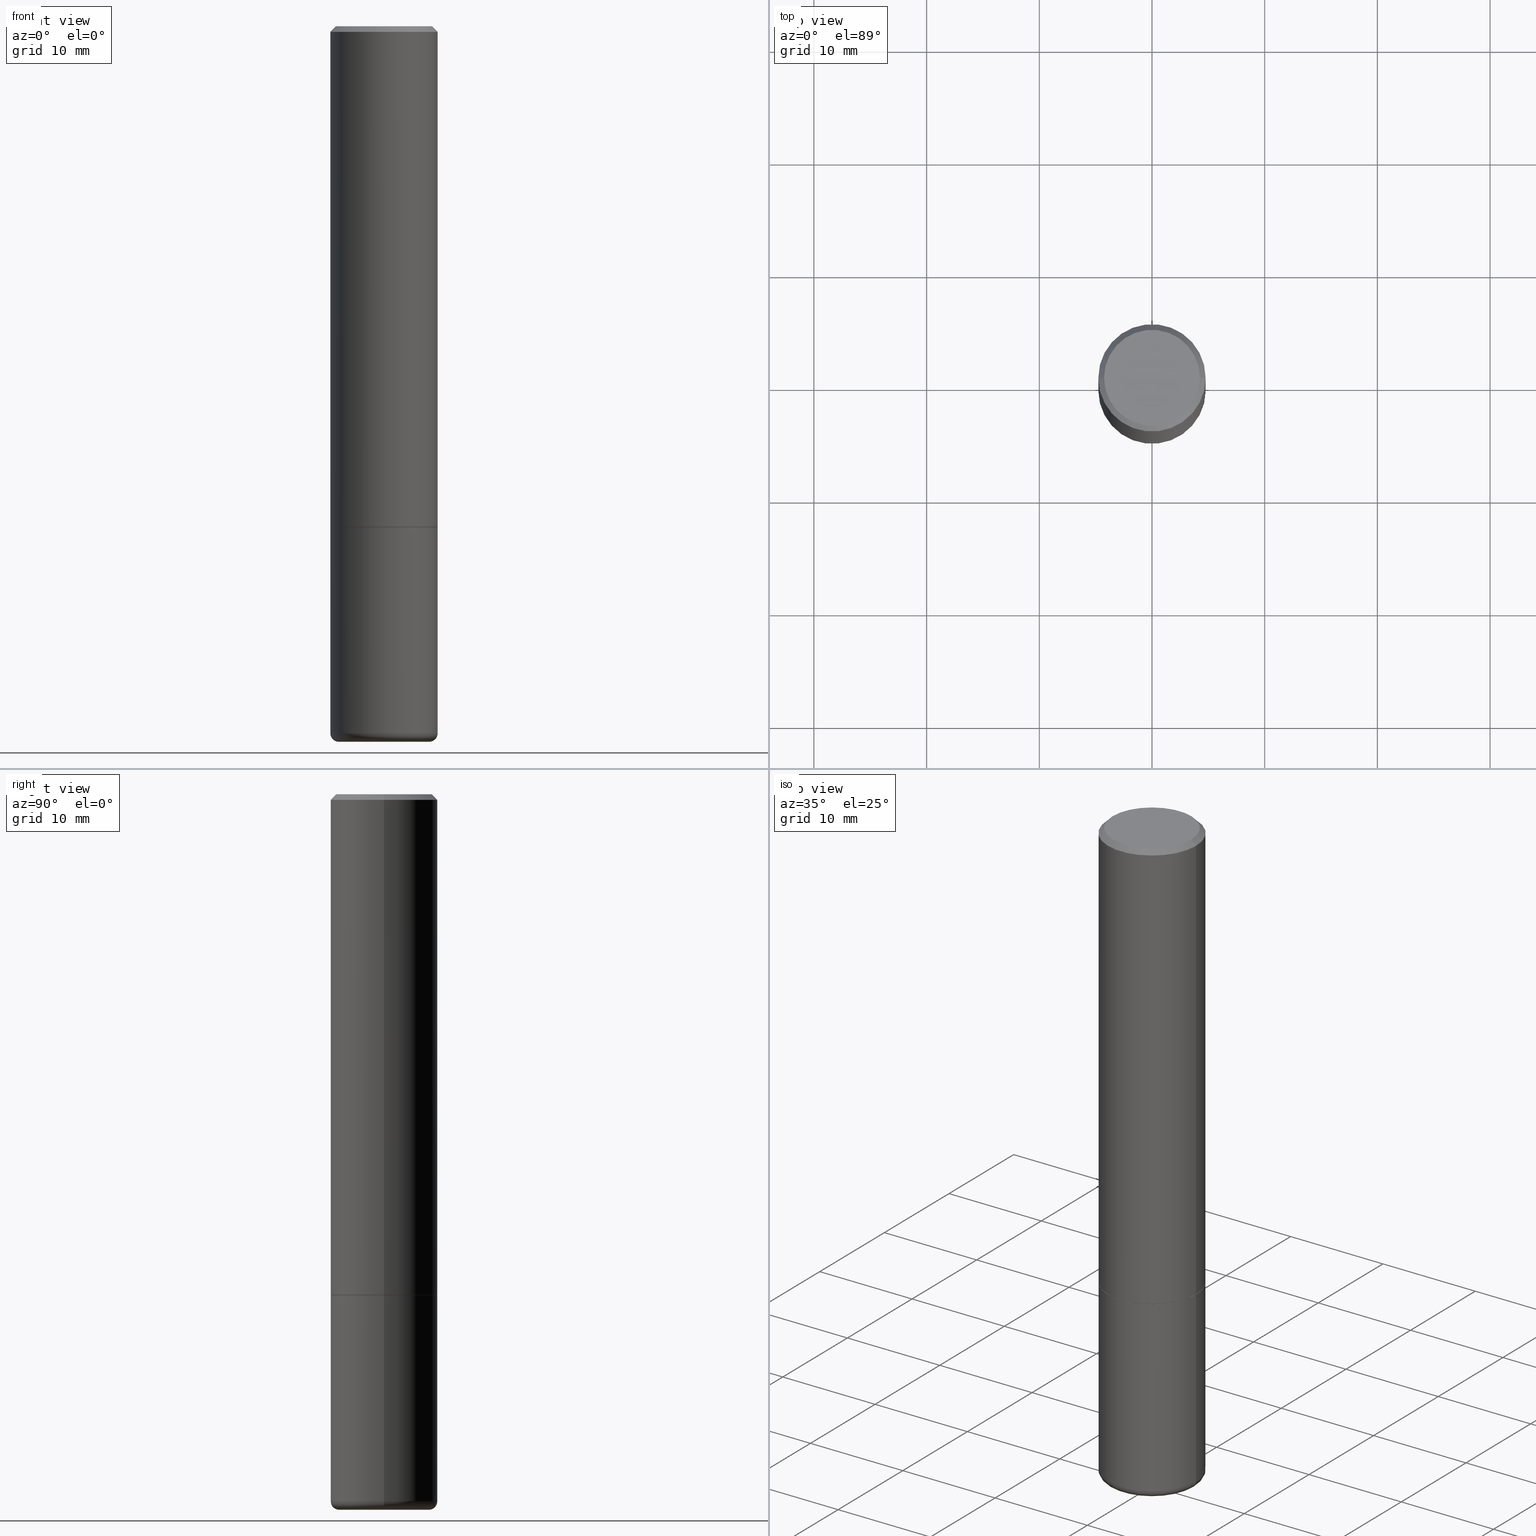
[diagram: canonical four-view strip — front | top / right | iso, engineering-drawing reading convention]
A machine part, canonical four-view strip (front | top / right | iso — engineering-drawing reading convention). The complete STEP part file that produces these views, byte-faithful:
ISO-10303-21;
HEADER;
FILE_DESCRIPTION (( 'STEP AP203' ),
    '1' );
FILE_NAME ('37023.STEP',
    '2024-03-01T18:48:43',
    ( '' ),
    ( '' ),
    'SwSTEP 2.0',
    'SolidWorks 2023',
    '' );
FILE_SCHEMA (( 'CONFIG_CONTROL_DESIGN' ));
ENDSEC;

DATA;
#1 = ORIENTED_EDGE ( 'NONE', *, *, #92, .T. ) ;
#2 = AXIS2_PLACEMENT_3D ( 'NONE', #135, #40, #9 ) ;
#3 = CIRCLE ( 'NONE', #202, 0.1875000000000000278 ) ;
#4 = EDGE_LOOP ( 'NONE', ( #236, #268, #52, #38 ) ) ;
#5 = DIRECTION ( 'NONE',  ( 7.105427357601001859E-15, 1.000000000000000000, -3.491481338843145583E-15 ) ) ;
#6 = CARTESIAN_POINT ( 'NONE',  ( -0.1865000000000000546, -4.779631686434695429E-15, -1.750000000000000222 ) ) ;
#7 = CIRCLE ( 'NONE', #407, 0.02999999999999995379 ) ;
#8 = CARTESIAN_POINT ( 'NONE',  ( -2.400858252971005371E-45, 3.427789291875028588E-31, 9.817578727230945633E-17 ) ) ;
#9 = DIRECTION ( 'NONE',  ( 1.000000000000000000, -6.982962677686265922E-15, 0.000000000000000000 ) ) ;
#10 = DIRECTION ( 'NONE',  ( -2.445468806185136597E-29, 3.491481338843145583E-15, 1.000000000000000000 ) ) ;
#11 = AXIS2_PLACEMENT_3D ( 'NONE', #248, #176, #12 ) ;
#12 = DIRECTION ( 'NONE',  ( -1.000000000000000000, 6.982962677686265922E-15, -4.876176775795935793E-29 ) ) ;
#13 = ADVANCED_FACE ( 'NONE', ( #153 ), #227, .T. ) ;
#14 = DIRECTION ( 'NONE',  ( 1.000000000000000000, -6.982962677686269077E-15, 4.883557194083113462E-29 ) ) ;
#15 = VERTEX_POINT ( 'NONE', #322 ) ;
#16 = CC_DESIGN_PERSON_AND_ORGANIZATION_ASSIGNMENT ( #388, #128, ( #76 ) ) ;
#17 = DIRECTION ( 'NONE',  ( 1.000000000000000000, -6.982962677686266711E-15, 4.876176775795935793E-29 ) ) ;
#18 = ORIENTED_EDGE ( 'NONE', *, *, #339, .T. ) ;
#19 = CARTESIAN_POINT ( 'NONE',  ( 4.279570410823989044E-29, -6.110092342975505460E-15, -1.750000000000000222 ) ) ;
#20 = AXIS2_PLACEMENT_3D ( 'NONE', #243, #95, #96 ) ;
#21 = EDGE_LOOP ( 'NONE', ( #381, #186, #91, #349 ) ) ;
#22 = CARTESIAN_POINT ( 'NONE',  ( 0.000000000000000000, 0.000000000000000000, 0.000000000000000000 ) ) ;
#23 = ADVANCED_FACE ( 'NONE', ( #119 ), #383, .F. ) ;
#24 = ORIENTED_EDGE ( 'NONE', *, *, #232, .T. ) ;
#25 = DATE_AND_TIME ( #65, #274 ) ;
#26 = EDGE_LOOP ( 'NONE', ( #123, #293, #320, #199 ) ) ;
#27 = CC_DESIGN_PERSON_AND_ORGANIZATION_ASSIGNMENT ( #352, #59, ( #102 ) ) ;
#28 = VERTEX_POINT ( 'NONE', #33 ) ;
#29 = AXIS2_PLACEMENT_3D ( 'NONE', #171, #363, #332 ) ;
#30 = VECTOR ( 'NONE', #292, 39.37007874015748143 ) ;
#31 = EDGE_CURVE ( 'NONE', #196, #222, #89, .T. ) ;
#32 = APPROVAL_DATE_TIME ( #382, #395 ) ;
#33 = CARTESIAN_POINT ( 'NONE',  ( -0.1674999999999999545, 1.204561061900880850E-15, 9.817578727230116097E-17 ) ) ;
#34 = CARTESIAN_POINT ( 'NONE',  ( -0.1875000000000000278, -6.034757995408850668E-15, -1.750000000000000222 ) ) ;
#35 = ORIENTED_EDGE ( 'NONE', *, *, #161, .T. ) ;
#36 = APPLICATION_CONTEXT ( 'configuration controlled 3d designs of mechanical parts and assemblies' ) ;
#37 = LENGTH_MEASURE_WITH_UNIT ( LENGTH_MEASURE( 0.02539999999999999897 ), #384 );
#38 = ORIENTED_EDGE ( 'NONE', *, *, #232, .F. ) ;
#39 = LOCAL_TIME ( 13, 48, 43.00000000000000000, #242 ) ;
#40 = DIRECTION ( 'NONE',  ( -2.445468806185136597E-29, 3.491481338843145583E-15, 1.000000000000000000 ) ) ;
#41 = EDGE_CURVE ( 'NONE', #64, #289, #71, .T. ) ;
#42 = FACE_OUTER_BOUND ( 'NONE', #281, .T. ) ;
#43 = SHAPE_DEFINITION_REPRESENTATION ( #311, #143 ) ;
#44 = FACE_OUTER_BOUND ( 'NONE', #162, .T. ) ;
#45 = AXIS2_PLACEMENT_3D ( 'NONE', #22, #110, #17 ) ;
#46 = CARTESIAN_POINT ( 'NONE',  ( 6.040307951277287977E-29, -8.623958906942569995E-15, -2.470000000000000195 ) ) ;
#47 = CARTESIAN_POINT ( 'NONE',  ( -0.1874999999999999722, -7.291691277392382147E-15, -2.470000000000000195 ) ) ;
#48 = CARTESIAN_POINT ( 'NONE',  ( -0.1875000000000001943, -1.755947614656571871E-15, -1.749000000000000110 ) ) ;
#49 = CIRCLE ( 'NONE', #394, 0.1875000000000001943 ) ;
#50 = CARTESIAN_POINT ( 'NONE',  ( 0.1875000000000000278, -7.419397845041680468E-15, -1.750000000000000222 ) ) ;
#51 = CARTESIAN_POINT ( 'NONE',  ( 6.040307951277287977E-29, -8.623958906942569995E-15, -2.470000000000000195 ) ) ;
#52 = ORIENTED_EDGE ( 'NONE', *, *, #41, .T. ) ;
#53 = DIRECTION ( 'NONE',  ( 2.445468806185136597E-29, -3.491481338843145583E-15, -1.000000000000000000 ) ) ;
#54 = EDGE_LOOP ( 'NONE', ( #66, #231, #142, #373 ) ) ;
#55 = DIRECTION ( 'NONE',  ( 1.000000000000000000, -6.982962677686265922E-15, 0.000000000000000000 ) ) ;
#56 = CIRCLE ( 'NONE', #140, 0.1674999999999999545 ) ;
#57 = DIRECTION ( 'NONE',  ( -2.445468806185136597E-29, 3.491481338843145583E-15, 1.000000000000000000 ) ) ;
#58 = ORIENTED_EDGE ( 'NONE', *, *, #130, .T. ) ;
#59 = PERSON_AND_ORGANIZATION_ROLE ( 'creator' ) ;
#60 = ORIENTED_EDGE ( 'NONE', *, *, #247, .F. ) ;
#61 = EDGE_CURVE ( 'NONE', #222, #196, #259, .T. ) ;
#62 = CARTESIAN_POINT ( 'NONE',  ( 1.169646248512449398E-15, 0.1674999999999999545, -5.357352306200719614E-16 ) ) ;
#63 = CONICAL_SURFACE ( 'NONE', #29, 0.1875000000000000555, 0.7853981633974471688 ) ;
#64 = VERTEX_POINT ( 'NONE', #241 ) ;
#65 = CALENDAR_DATE ( 2024, 1, 3 ) ;
#66 = ORIENTED_EDGE ( 'NONE', *, *, #391, .F. ) ;
#67 = DIRECTION ( 'NONE',  ( 1.000000000000000000, -6.982962677686266711E-15, 4.879897708425057866E-29 ) ) ;
#68 = DIRECTION ( 'NONE',  ( -2.445468806185136597E-29, 3.491481338843145583E-15, 1.000000000000000000 ) ) ;
#69 = FACE_OUTER_BOUND ( 'NONE', #4, .T. ) ;
#70 = FACE_OUTER_BOUND ( 'NONE', #405, .T. ) ;
#71 = CIRCLE ( 'NONE', #20, 0.1875000000000000555 ) ;
#72 = DIRECTION ( 'NONE',  ( -2.445468806185136597E-29, 3.491481338843145583E-15, 1.000000000000000000 ) ) ;
#73 = DIRECTION ( 'NONE',  ( -2.445468806185136597E-29, 3.491481338843145583E-15, 1.000000000000000000 ) ) ;
#74 = DIRECTION ( 'NONE',  ( -2.445468806185136877E-29, 3.491481338843145188E-15, 1.000000000000000000 ) ) ;
#75 = CIRCLE ( 'NONE', #364, 0.1875000000000000278 ) ;
#76 = SECURITY_CLASSIFICATION ( '', '', #270 ) ;
#77 = DIRECTION ( 'NONE',  ( 0.7071067811865466846, -7.319954787623252890E-15, -0.7071067811865483499 ) ) ;
#78 = DIRECTION ( 'NONE',  ( -1.000000000000000000, 6.982962677686265922E-15, 0.000000000000000000 ) ) ;
#79 = CARTESIAN_POINT ( 'NONE',  ( 0.1874999999999999722, -9.933264409008746581E-15, -2.470000000000000195 ) ) ;
#80 = COORDINATED_UNIVERSAL_TIME_OFFSET ( 5, 0, .BEHIND. ) ;
#81 = AXIS2_PLACEMENT_3D ( 'NONE', #51, #73, #14 ) ;
#82 = PERSON_AND_ORGANIZATION ( #342, #260 ) ;
#83 = EDGE_CURVE ( 'NONE', #385, #64, #244, .T. ) ;
#84 = ORIENTED_EDGE ( 'NONE', *, *, #41, .F. ) ;
#85 = MECHANICAL_CONTEXT ( 'NONE', #36, 'mechanical' ) ;
#86 = APPROVAL ( #328, 'UNSPECIFIED' ) ;
#87 = EDGE_LOOP ( 'NONE', ( #121, #410 ) ) ;
#88 = ORIENTED_EDGE ( 'NONE', *, *, #31, .F. ) ;
#89 = CIRCLE ( 'NONE', #399, 0.1865000000000000546 ) ;
#90 = VECTOR ( 'NONE', #74, 39.37007874015748143 ) ;
#91 = ORIENTED_EDGE ( 'NONE', *, *, #401, .F. ) ;
#92 = EDGE_CURVE ( 'NONE', #196, #327, #206, .T. ) ;
#93 = DATE_TIME_ROLE ( 'classification_date' ) ;
#94 = PLANE ( 'NONE',  #124 ) ;
#95 = DIRECTION ( 'NONE',  ( -2.445468806185136597E-29, 3.491481338843145583E-15, 1.000000000000000000 ) ) ;
#96 = DIRECTION ( 'NONE',  ( 1.000000000000000000, -6.982962677686265922E-15, 0.000000000000000000 ) ) ;
#97 = APPROVAL_DATE_TIME ( #245, #169 ) ;
#98 = DIRECTION ( 'NONE',  ( 2.438088387897960049E-29, -3.491481338843145188E-15, -1.000000000000000000 ) ) ;
#99 = DIRECTION ( 'NONE',  ( -2.445468806185136597E-29, 3.491481338843145583E-15, 1.000000000000000000 ) ) ;
#100 = ADVANCED_FACE ( 'NONE', ( #366 ), #310, .T. ) ;
#101 = TOROIDAL_SURFACE ( 'NONE', #81, 0.1575000000000000289, 0.02999999999999997113 ) ;
#102 = PRODUCT_DEFINITION_FORMATION_WITH_SPECIFIED_SOURCE ( 'ANY', '', #418, .NOT_KNOWN. ) ;
#103 = CARTESIAN_POINT ( 'NONE',  ( 0.1875000000000000555, -1.356173001359025663E-15, -0.02000000000000004205 ) ) ;
#104 = ADVANCED_FACE ( 'NONE', ( #70 ), #224, .T. ) ;
#105 = FACE_OUTER_BOUND ( 'NONE', #296, .T. ) ;
#106 = CARTESIAN_POINT ( 'NONE',  ( 0.000000000000000000, 0.000000000000000000, 0.000000000000000000 ) ) ;
#107 = ORIENTED_EDGE ( 'NONE', *, *, #205, .F. ) ;
#108 = CIRCLE ( 'NONE', #316, 0.02999999999999995379 ) ;
#109 = VECTOR ( 'NONE', #189, 39.37007874015748143 ) ;
#110 = DIRECTION ( 'NONE',  ( -2.445468806185136597E-29, 3.491481338843145583E-15, 1.000000000000000000 ) ) ;
#111 = DIRECTION ( 'NONE',  ( -2.438088387897960049E-29, 3.491481338843145188E-15, 1.000000000000000000 ) ) ;
#112 = APPLICATION_PROTOCOL_DEFINITION ( 'international standard', 'config_control_design', 1994, #295 ) ;
#113 = ORIENTED_EDGE ( 'NONE', *, *, #92, .F. ) ;
#114 = AXIS2_PLACEMENT_3D ( 'NONE', #207, #166, #137 ) ;
#115 = CALENDAR_DATE ( 2024, 1, 3 ) ;
#116 = DIRECTION ( 'NONE',  ( -2.445468806185136597E-29, 3.491481338843145583E-15, 1.000000000000000000 ) ) ;
#117 = CC_DESIGN_PERSON_AND_ORGANIZATION_ASSIGNMENT ( #118, #230, ( #418 ) ) ;
#118 = PERSON_AND_ORGANIZATION ( #342, #260 ) ;
#119 = FACE_OUTER_BOUND ( 'NONE', #87, .T. ) ;
#120 = DATE_AND_TIME ( #261, #344 ) ;
#121 = ORIENTED_EDGE ( 'NONE', *, *, #125, .T. ) ;
#122 = APPLICATION_PROTOCOL_DEFINITION ( 'international standard', 'config_control_design', 1994, #36 ) ;
#123 = ORIENTED_EDGE ( 'NONE', *, *, #403, .F. ) ;
#124 = AXIS2_PLACEMENT_3D ( 'NONE', #175, #98, #246 ) ;
#125 = EDGE_CURVE ( 'NONE', #28, #15, #56, .T. ) ;
#126 = VECTOR ( 'NONE', #77, 39.37007874015748143 ) ;
#127 = ORIENTED_EDGE ( 'NONE', *, *, #304, .F. ) ;
#128 = PERSON_AND_ORGANIZATION_ROLE ( 'classification_officer' ) ;
#129 = DIRECTION ( 'NONE',  ( -2.445468806185136597E-29, 3.491481338843145583E-15, 1.000000000000000000 ) ) ;
#130 = EDGE_CURVE ( 'NONE', #235, #301, #108, .T. ) ;
#131 = APPROVAL_ROLE ( '' ) ;
#132 = CARTESIAN_POINT ( 'NONE',  ( 6.113672015462842613E-29, -8.728703347107864943E-15, -2.500000000000000000 ) ) ;
#133 = CIRCLE ( 'NONE', #218, 0.1875000000000000278 ) ;
#134 = APPROVAL_PERSON_ORGANIZATION ( #173, #169, #131 ) ;
#135 = CARTESIAN_POINT ( 'NONE',  ( 4.279570410823989044E-29, -6.110092342975505460E-15, -1.750000000000000222 ) ) ;
#136 = DIRECTION ( 'NONE',  ( -6.982962677686266711E-15, -1.000000000000000000, 3.491481338843145583E-15 ) ) ;
#137 = DIRECTION ( 'NONE',  ( 1.000000000000000000, -6.982962677686265922E-15, 0.000000000000000000 ) ) ;
#138 = EDGE_CURVE ( 'NONE', #389, #347, #133, .T. ) ;
#139 = AXIS2_PLACEMENT_3D ( 'NONE', #278, #406, #182 ) ;
#140 = AXIS2_PLACEMENT_3D ( 'NONE', #8, #72, #174 ) ;
#141 = FACE_OUTER_BOUND ( 'NONE', #21, .T. ) ;
#142 = ORIENTED_EDGE ( 'NONE', *, *, #286, .T. ) ;
#143 = ADVANCED_BREP_SHAPE_REPRESENTATION ( '37023', ( #253, #390, #414 ), #365 ) ;
#144 = LINE ( 'NONE', #214, #157 ) ;
#145 = ADVANCED_FACE ( 'NONE', ( #44 ), #330, .T. ) ;
#146 = DIRECTION ( 'NONE',  ( 1.000000000000000000, -6.982962677686265922E-15, 0.000000000000000000 ) ) ;
#147 = AXIS2_PLACEMENT_3D ( 'NONE', #412, #116, #262 ) ;
#148 = CC_DESIGN_SECURITY_CLASSIFICATION ( #76, ( #102 ) ) ;
#149 = CYLINDRICAL_SURFACE ( 'NONE', #203, 0.1875000000000000278 ) ;
#150 = ORIENTED_EDGE ( 'NONE', *, *, #391, .T. ) ;
#151 = DIRECTION ( 'NONE',  ( -2.445468806185136597E-29, 3.491481338843145583E-15, 1.000000000000000000 ) ) ;
#152 = ORIENTED_EDGE ( 'NONE', *, *, #61, .F. ) ;
#153 = FACE_OUTER_BOUND ( 'NONE', #160, .T. ) ;
#154 = ADVANCED_FACE ( 'NONE', ( #42 ), #94, .F. ) ;
#155 = CIRCLE ( 'NONE', #378, 0.1674999999999999545 ) ;
#156 = CARTESIAN_POINT ( 'NONE',  ( 0.000000000000000000, 0.000000000000000000, 0.000000000000000000 ) ) ;
#157 = VECTOR ( 'NONE', #309, 39.37007874015748143 ) ;
#158 = ORIENTED_EDGE ( 'NONE', *, *, #161, .F. ) ;
#159 = PERSON_AND_ORGANIZATION_ROLE ( 'creator' ) ;
#160 = EDGE_LOOP ( 'NONE', ( #356, #150, #60, #354 ) ) ;
#161 = EDGE_CURVE ( 'NONE', #222, #385, #302, .T. ) ;
#162 = EDGE_LOOP ( 'NONE', ( #314, #18, #58, #269 ) ) ;
#163 = ORIENTED_EDGE ( 'NONE', *, *, #403, .T. ) ;
#164 = CLOSED_SHELL ( 'NONE', ( #13, #210, #154, #279, #145, #359 ) ) ;
#165 = PERSON_AND_ORGANIZATION_ROLE ( 'design_supplier' ) ;
#166 = DIRECTION ( 'NONE',  ( -2.445468806185136597E-29, 3.491481338843145583E-15, 1.000000000000000000 ) ) ;
#167 = ADVANCED_FACE ( 'NONE', ( #69 ), #63, .T. ) ;
#168 = CARTESIAN_POINT ( 'NONE',  ( 0.1875000000000001110, -1.309305502066175797E-15, 9.142831454617385217E-30 ) ) ;
#169 = APPROVAL ( #237, 'UNSPECIFIED' ) ;
#170 = UNCERTAINTY_MEASURE_WITH_UNIT (LENGTH_MEASURE( 1.000000000000000082E-05 ), #357, 'distance_accuracy_value', 'NONE');
#171 = CARTESIAN_POINT ( 'NONE',  ( 4.890937612370283668E-31, -6.982962677686305168E-17, -0.02000000000000004205 ) ) ;
#172 = LOCAL_TIME ( 13, 48, 43.00000000000000000, #80 ) ;
#173 = PERSON_AND_ORGANIZATION ( #342, #260 ) ;
#174 = DIRECTION ( 'NONE',  ( 1.000000000000000000, -6.982962677686266711E-15, 4.879897708425057866E-29 ) ) ;
#175 = CARTESIAN_POINT ( 'NONE',  ( 4.279570410823989044E-29, -6.110092342975505460E-15, -1.750000000000000222 ) ) ;
#176 = DIRECTION ( 'NONE',  ( 2.438088387897960049E-29, -3.491481338843145188E-15, -1.000000000000000000 ) ) ;
#177 = AXIS2_PLACEMENT_3D ( 'NONE', #132, #201, #271 ) ;
#178 = CYLINDRICAL_SURFACE ( 'NONE', #45, 0.1875000000000001110 ) ;
#179 = EDGE_CURVE ( 'NONE', #181, #188, #7, .T. ) ;
#180 = DIRECTION ( 'NONE',  ( 1.000000000000000000, -6.982962677686266711E-15, 0.000000000000000000 ) ) ;
#181 = VERTEX_POINT ( 'NONE', #397 ) ;
#182 = DIRECTION ( 'NONE',  ( 1.000000000000000000, -6.982962677686265922E-15, 0.000000000000000000 ) ) ;
#183 = AXIS2_PLACEMENT_3D ( 'NONE', #106, #346, #374 ) ;
#184 = CARTESIAN_POINT ( 'NONE',  ( 4.890937612370283668E-31, -6.982962677686305168E-17, -0.02000000000000004205 ) ) ;
#185 = EDGE_CURVE ( 'NONE', #188, #301, #75, .T. ) ;
#186 = ORIENTED_EDGE ( 'NONE', *, *, #179, .T. ) ;
#187 = PERSON_AND_ORGANIZATION ( #342, #260 ) ;
#188 = VERTEX_POINT ( 'NONE', #47 ) ;
#189 = DIRECTION ( 'NONE',  ( -2.445468806185136877E-29, 3.491481338843145188E-15, 1.000000000000000000 ) ) ;
#190 = ORIENTED_EDGE ( 'NONE', *, *, #247, .T. ) ;
#191 = PERSON_AND_ORGANIZATION ( #342, #260 ) ;
#192 = CC_DESIGN_APPROVAL ( #169, ( #76 ) ) ;
#193 = DIRECTION ( 'NONE',  ( 2.438088387897960049E-29, -3.491481338843145188E-15, -1.000000000000000000 ) ) ;
#194 = DIMENSIONAL_EXPONENTS ( 1.000000000000000000, 0.000000000000000000, 0.000000000000000000, 0.000000000000000000, 0.000000000000000000, 0.000000000000000000, 0.000000000000000000 ) ;
#195 =( NAMED_UNIT ( * ) SI_UNIT ( $, .STERADIAN. ) SOLID_ANGLE_UNIT ( ) );
#196 = VERTEX_POINT ( 'NONE', #6 ) ;
#197 = EDGE_CURVE ( 'NONE', #15, #28, #155, .T. ) ;
#198 = DATE_TIME_ROLE ( 'creation_date' ) ;
#199 = ORIENTED_EDGE ( 'NONE', *, *, #213, .F. ) ;
#200 = EDGE_CURVE ( 'NONE', #235, #181, #277, .T. ) ;
#201 = DIRECTION ( 'NONE',  ( -2.445468806185136597E-29, 3.491481338843145583E-15, 1.000000000000000000 ) ) ;
#202 = AXIS2_PLACEMENT_3D ( 'NONE', #282, #249, #180 ) ;
#203 = AXIS2_PLACEMENT_3D ( 'NONE', #313, #376, #285 ) ;
#204 = DIRECTION ( 'NONE',  ( 1.000000000000000000, -6.982962677686265922E-15, 0.000000000000000000 ) ) ;
#205 = EDGE_CURVE ( 'NONE', #327, #385, #413, .T. ) ;
#206 = LINE ( 'NONE', #393, #336 ) ;
#207 = CARTESIAN_POINT ( 'NONE',  ( 4.279570410823989044E-29, -6.110092342975505460E-15, -1.750000000000000222 ) ) ;
#208 = AXIS2_PLACEMENT_3D ( 'NONE', #337, #68, #204 ) ;
#209 = APPROVAL_PERSON_ORGANIZATION ( #187, #395, #377 ) ;
#210 = ADVANCED_FACE ( 'NONE', ( #141 ), #101, .T. ) ;
#211 = DIRECTION ( 'NONE',  ( -0.7071067811865715536, 7.493145998870439357E-15, 0.7071067811865232589 ) ) ;
#212 = DESIGN_CONTEXT ( 'detailed design', #295, 'design' ) ;
#213 = EDGE_CURVE ( 'NONE', #289, #64, #331, .T. ) ;
#214 = CARTESIAN_POINT ( 'NONE',  ( -0.1875000000000000555, 1.239475875289312104E-15, -0.02000000000000004205 ) ) ;
#215 = FACE_OUTER_BOUND ( 'NONE', #26, .T. ) ;
#216 = EDGE_CURVE ( 'NONE', #385, #327, #49, .T. ) ;
#217 = ORIENTED_EDGE ( 'NONE', *, *, #213, .T. ) ;
#218 = AXIS2_PLACEMENT_3D ( 'NONE', #335, #276, #340 ) ;
#219 = AXIS2_PLACEMENT_3D ( 'NONE', #220, #151, #348 ) ;
#220 = CARTESIAN_POINT ( 'NONE',  ( 6.113672015462842613E-29, -8.728703347107864943E-15, -2.500000000000000000 ) ) ;
#221 = FACE_OUTER_BOUND ( 'NONE', #54, .T. ) ;
#222 = VERTEX_POINT ( 'NONE', #375 ) ;
#223 = DIRECTION ( 'NONE',  ( -2.445468806185136597E-29, 3.491481338843145583E-15, 1.000000000000000000 ) ) ;
#224 = CONICAL_SURFACE ( 'NONE', #208, 0.1865000000000000546, 0.7853981633974824739 ) ;
#225 = CC_DESIGN_APPROVAL ( #395, ( #288 ) ) ;
#226 = CARTESIAN_POINT ( 'NONE',  ( 0.1875000000000001943, -7.415906363702837461E-15, -1.749000000000000110 ) ) ;
#227 = CYLINDRICAL_SURFACE ( 'NONE', #147, 0.1875000000000000278 ) ;
#228 = APPROVAL_DATE_TIME ( #120, #86 ) ;
#229 = ORIENTED_EDGE ( 'NONE', *, *, #216, .T. ) ;
#230 = PERSON_AND_ORGANIZATION_ROLE ( 'design_owner' ) ;
#231 = ORIENTED_EDGE ( 'NONE', *, *, #185, .T. ) ;
#232 = EDGE_CURVE ( 'NONE', #28, #289, #144, .T. ) ;
#233 = VECTOR ( 'NONE', #370, 39.37007874015748854 ) ;
#234 = AXIS2_PLACEMENT_3D ( 'NONE', #184, #53, #78 ) ;
#235 = VERTEX_POINT ( 'NONE', #280 ) ;
#236 = ORIENTED_EDGE ( 'NONE', *, *, #197, .F. ) ;
#237 = APPROVAL_STATUS ( 'not_yet_approved' ) ;
#238 = DIRECTION ( 'NONE',  ( -2.445468806185136877E-29, 3.491481338843145188E-15, 1.000000000000000000 ) ) ;
#239 = ADVANCED_FACE ( 'NONE', ( #345 ), #408, .T. ) ;
#240 = CLOSED_SHELL ( 'NONE', ( #100, #353, #167, #239, #291, #104, #264, #23 ) ) ;
#241 = CARTESIAN_POINT ( 'NONE',  ( 0.1875000000000000555, -1.356173001359025663E-15, -0.02000000000000004205 ) ) ;
#242 = COORDINATED_UNIVERSAL_TIME_OFFSET ( 5, 0, .BEHIND. ) ;
#243 = CARTESIAN_POINT ( 'NONE',  ( 4.890937612370283668E-31, -6.982962677686305168E-17, -0.02000000000000004205 ) ) ;
#244 = LINE ( 'NONE', #168, #386 ) ;
#245 = DATE_AND_TIME ( #392, #39 ) ;
#246 = DIRECTION ( 'NONE',  ( -1.000000000000000000, 6.982962677686265922E-15, -4.876176775795935793E-29 ) ) ;
#247 = EDGE_CURVE ( 'NONE', #347, #389, #3, .T. ) ;
#248 = CARTESIAN_POINT ( 'NONE',  ( 6.113672015462842613E-29, -8.728703347107864943E-15, -2.500000000000000000 ) ) ;
#249 = DIRECTION ( 'NONE',  ( -2.445468806185136597E-29, 3.491481338843145583E-15, 1.000000000000000000 ) ) ;
#250 = CC_DESIGN_DATE_AND_TIME_ASSIGNMENT ( #334, #93, ( #76 ) ) ;
#251 = CARTESIAN_POINT ( 'NONE',  ( -0.1875000000000000555, 1.239475875289312104E-15, -0.02000000000000004205 ) ) ;
#252 = ORIENTED_EDGE ( 'NONE', *, *, #31, .T. ) ;
#253 = MANIFOLD_SOLID_BREP ( 'Body-Move/Copy2[1]', #164 ) ;
#254 = FACE_OUTER_BOUND ( 'NONE', #267, .T. ) ;
#255 = CYLINDRICAL_SURFACE ( 'NONE', #183, 0.1875000000000001110 ) ;
#256 = ORIENTED_EDGE ( 'NONE', *, *, #200, .F. ) ;
#257 = DIRECTION ( 'NONE',  ( 1.000000000000000000, -6.982962677686266711E-15, 0.000000000000000000 ) ) ;
#258 = CC_DESIGN_PERSON_AND_ORGANIZATION_ASSIGNMENT ( #191, #159, ( #288 ) ) ;
#259 = CIRCLE ( 'NONE', #2, 0.1865000000000000546 ) ;
#260 = ORGANIZATION ( 'UNSPECIFIED', 'UNSPECIFIED', '' ) ;
#261 = CALENDAR_DATE ( 2024, 1, 3 ) ;
#262 = DIRECTION ( 'NONE',  ( 1.000000000000000000, -6.982962677686265922E-15, 4.876176775795935793E-29 ) ) ;
#263 = APPROVAL_STATUS ( 'not_yet_approved' ) ;
#264 = ADVANCED_FACE ( 'NONE', ( #105 ), #372, .F. ) ;
#265 = ORIENTED_EDGE ( 'NONE', *, *, #125, .F. ) ;
#266 = PERSON_AND_ORGANIZATION ( #342, #260 ) ;
#267 = EDGE_LOOP ( 'NONE', ( #256, #361 ) ) ;
#268 = ORIENTED_EDGE ( 'NONE', *, *, #304, .T. ) ;
#269 = ORIENTED_EDGE ( 'NONE', *, *, #185, .F. ) ;
#270 = SECURITY_CLASSIFICATION_LEVEL ( 'unclassified' ) ;
#271 = DIRECTION ( 'NONE',  ( 1.000000000000000000, -6.982962677686267499E-15, 0.000000000000000000 ) ) ;
#272 = AXIS2_PLACEMENT_3D ( 'NONE', #398, #99, #333 ) ;
#273 = CARTESIAN_POINT ( 'NONE',  ( 0.1575000000000000289, -9.723775528678158264E-15, -2.470000000000000195 ) ) ;
#274 = LOCAL_TIME ( 13, 48, 43.00000000000000000, #360 ) ;
#275 = CARTESIAN_POINT ( 'NONE',  ( 0.1865000000000000546, -7.412414882363994454E-15, -1.750000000000000222 ) ) ;
#276 = DIRECTION ( 'NONE',  ( -2.445468806185136597E-29, 3.491481338843145583E-15, 1.000000000000000000 ) ) ;
#277 = CIRCLE ( 'NONE', #177, 0.1575000000000000289 ) ;
#278 = CARTESIAN_POINT ( 'NONE',  ( 4.890937612370283668E-31, -6.982962677686305168E-17, -0.02000000000000004205 ) ) ;
#279 = ADVANCED_FACE ( 'NONE', ( #221 ), #149, .T. ) ;
#280 = CARTESIAN_POINT ( 'NONE',  ( 0.1575000000000000289, -9.828519968843451634E-15, -2.500000000000000000 ) ) ;
#281 = EDGE_LOOP ( 'NONE', ( #190, #415 ) ) ;
#282 = CARTESIAN_POINT ( 'NONE',  ( 4.279570410823989044E-29, -6.110092342975505460E-15, -1.750000000000000222 ) ) ;
#283 = ORIENTED_EDGE ( 'NONE', *, *, #83, .F. ) ;
#284 = AXIS2_PLACEMENT_3D ( 'NONE', #321, #57, #257 ) ;
#285 = DIRECTION ( 'NONE',  ( 1.000000000000000000, -6.982962677686265922E-15, 4.876176775795935793E-29 ) ) ;
#286 = EDGE_CURVE ( 'NONE', #301, #347, #341, .T. ) ;
#287 =( NAMED_UNIT ( * ) PLANE_ANGLE_UNIT ( ) SI_UNIT ( $, .RADIAN. ) );
#288 = PRODUCT_DEFINITION ( 'UNKNOWN', '', #102, #212 ) ;
#289 = VERTEX_POINT ( 'NONE', #251 ) ;
#290 = AXIS2_PLACEMENT_3D ( 'NONE', #62, #193, #325 ) ;
#291 = ADVANCED_FACE ( 'NONE', ( #215 ), #255, .T. ) ;
#292 = DIRECTION ( 'NONE',  ( -2.445468806185136877E-29, 3.491481338843145188E-15, 1.000000000000000000 ) ) ;
#293 = ORIENTED_EDGE ( 'NONE', *, *, #205, .T. ) ;
#294 = PRODUCT_RELATED_PRODUCT_CATEGORY ( 'detail', '', ( #418 ) ) ;
#295 = APPLICATION_CONTEXT ( 'configuration controlled 3d designs of mechanical parts and assemblies' ) ;
#296 = EDGE_LOOP ( 'NONE', ( #152, #88 ) ) ;
#297 = LINE ( 'NONE', #350, #109 ) ;
#298 = EDGE_LOOP ( 'NONE', ( #229, #163, #84, #283 ) ) ;
#299 = CALENDAR_DATE ( 2024, 1, 3 ) ;
#300 = LOCAL_TIME ( 13, 48, 43.00000000000000000, #367 ) ;
#301 = VERTEX_POINT ( 'NONE', #79 ) ;
#302 = LINE ( 'NONE', #275, #233 ) ;
#303 = CARTESIAN_POINT ( 'NONE',  ( -0.1575000000000000289, -7.504854098120412392E-15, -2.470000000000000195 ) ) ;
#304 = EDGE_CURVE ( 'NONE', #15, #64, #343, .T. ) ;
#305 = AXIS2_PLACEMENT_3D ( 'NONE', #312, #223, #55 ) ;
#306 = DIRECTION ( 'NONE',  ( -1.000000000000000000, 7.105427357601001859E-15, 0.000000000000000000 ) ) ;
#307 = DIRECTION ( 'NONE',  ( 1.000000000000000000, -6.982962677686266711E-15, 0.000000000000000000 ) ) ;
#308 = CARTESIAN_POINT ( 'NONE',  ( -2.400858252971005371E-45, 3.427789291875028588E-31, 9.817578727230945633E-17 ) ) ;
#309 = DIRECTION ( 'NONE',  ( -0.7071067811865466846, 2.468850131082247989E-15, -0.7071067811865483499 ) ) ;
#310 = CONICAL_SURFACE ( 'NONE', #114, 0.1865000000000000546, 0.7853981633974824739 ) ;
#311 = PRODUCT_DEFINITION_SHAPE ( 'NONE', 'NONE',  #288 ) ;
#312 = CARTESIAN_POINT ( 'NONE',  ( 4.277124942017804562E-29, -6.106600861636661664E-15, -1.749000000000000110 ) ) ;
#313 = CARTESIAN_POINT ( 'NONE',  ( 0.000000000000000000, 0.000000000000000000, 0.000000000000000000 ) ) ;
#314 = ORIENTED_EDGE ( 'NONE', *, *, #179, .F. ) ;
#315 = DIRECTION ( 'NONE',  ( -2.445468806185136597E-29, 3.491481338843145583E-15, 1.000000000000000000 ) ) ;
#316 = AXIS2_PLACEMENT_3D ( 'NONE', #273, #136, #368 ) ;
#317 = CIRCLE ( 'NONE', #284, 0.1875000000000000278 ) ;
#318 = FACE_OUTER_BOUND ( 'NONE', #298, .T. ) ;
#319 = APPROVAL_ROLE ( '' ) ;
#320 = ORIENTED_EDGE ( 'NONE', *, *, #83, .T. ) ;
#321 = CARTESIAN_POINT ( 'NONE',  ( 6.040307951277287977E-29, -8.623958906942569995E-15, -2.470000000000000195 ) ) ;
#322 = CARTESIAN_POINT ( 'NONE',  ( 0.1674999999999999545, -1.252653207992878288E-15, 9.817578727231793659E-17 ) ) ;
#323 = CC_DESIGN_DATE_AND_TIME_ASSIGNMENT ( #25, #198, ( #288 ) ) ;
#324 = AXIS2_PLACEMENT_3D ( 'NONE', #19, #111, #404 ) ;
#325 = DIRECTION ( 'NONE',  ( -1.000000000000000000, 6.982962677686265922E-15, -4.876176775795935793E-29 ) ) ;
#326 = CARTESIAN_POINT ( 'NONE',  ( -0.1875000000000001110, 1.332267629550188637E-15, -9.223003294227953596E-30 ) ) ;
#327 = VERTEX_POINT ( 'NONE', #48 ) ;
#328 = APPROVAL_STATUS ( 'not_yet_approved' ) ;
#329 = ORIENTED_EDGE ( 'NONE', *, *, #216, .F. ) ;
#330 = TOROIDAL_SURFACE ( 'NONE', #272, 0.1575000000000000289, 0.02999999999999997113 ) ;
#331 = CIRCLE ( 'NONE', #139, 0.1875000000000000555 ) ;
#332 = DIRECTION ( 'NONE',  ( -1.000000000000000000, 6.982962677686265922E-15, 0.000000000000000000 ) ) ;
#333 = DIRECTION ( 'NONE',  ( 1.000000000000000000, -6.982962677686269077E-15, 4.883557194083113462E-29 ) ) ;
#334 = DATE_AND_TIME ( #299, #300 ) ;
#335 = CARTESIAN_POINT ( 'NONE',  ( 4.279570410823989044E-29, -6.110092342975505460E-15, -1.750000000000000222 ) ) ;
#336 = VECTOR ( 'NONE', #211, 39.37007874015748854 ) ;
#337 = CARTESIAN_POINT ( 'NONE',  ( 4.279570410823989044E-29, -6.110092342975505460E-15, -1.750000000000000222 ) ) ;
#338 = CC_DESIGN_APPROVAL ( #86, ( #102 ) ) ;
#339 = EDGE_CURVE ( 'NONE', #181, #235, #371, .T. ) ;
#340 = DIRECTION ( 'NONE',  ( 1.000000000000000000, -6.982962677686266711E-15, 0.000000000000000000 ) ) ;
#341 = LINE ( 'NONE', #409, #90 ) ;
#342 = PERSON ( 'UNSPECIFIED', 'UNSPECIFIED', 'UNSPECIFIED', ('UNSPECIFIED'), ('UNSPECIFIED'), ('UNSPECIFIED') ) ;
#343 = LINE ( 'NONE', #103, #126 ) ;
#344 = LOCAL_TIME ( 13, 48, 43.00000000000000000, #416 ) ;
#345 = FACE_OUTER_BOUND ( 'NONE', #387, .T. ) ;
#346 = DIRECTION ( 'NONE',  ( -2.445468806185136597E-29, 3.491481338843145583E-15, 1.000000000000000000 ) ) ;
#347 = VERTEX_POINT ( 'NONE', #50 ) ;
#348 = DIRECTION ( 'NONE',  ( 1.000000000000000000, -6.982962677686267499E-15, 0.000000000000000000 ) ) ;
#349 = ORIENTED_EDGE ( 'NONE', *, *, #130, .F. ) ;
#350 = CARTESIAN_POINT ( 'NONE',  ( -0.1875000000000000278, 1.332267629550188046E-15, -9.223003294227947991E-30 ) ) ;
#351 = ORIENTED_EDGE ( 'NONE', *, *, #61, .T. ) ;
#352 = PERSON_AND_ORGANIZATION ( #342, #260 ) ;
#353 = ADVANCED_FACE ( 'NONE', ( #318 ), #178, .T. ) ;
#354 = ORIENTED_EDGE ( 'NONE', *, *, #286, .F. ) ;
#355 = DIRECTION ( 'NONE',  ( 1.000000000000000000, 0.000000000000000000, 0.000000000000000000 ) ) ;
#356 = ORIENTED_EDGE ( 'NONE', *, *, #401, .T. ) ;
#357 =( CONVERSION_BASED_UNIT ( 'INCH', #37 ) LENGTH_UNIT ( ) NAMED_UNIT ( #194 ) );
#358 = EDGE_LOOP ( 'NONE', ( #351, #1, #329, #158 ) ) ;
#359 = ADVANCED_FACE ( 'NONE', ( #254 ), #400, .T. ) ;
#360 = COORDINATED_UNIVERSAL_TIME_OFFSET ( 5, 0, .BEHIND. ) ;
#361 = ORIENTED_EDGE ( 'NONE', *, *, #339, .F. ) ;
#362 = CC_DESIGN_PERSON_AND_ORGANIZATION_ASSIGNMENT ( #266, #165, ( #102 ) ) ;
#363 = DIRECTION ( 'NONE',  ( 2.445468806185136597E-29, -3.491481338843145583E-15, -1.000000000000000000 ) ) ;
#364 = AXIS2_PLACEMENT_3D ( 'NONE', #46, #129, #307 ) ;
#365 =( GEOMETRIC_REPRESENTATION_CONTEXT ( 3 ) GLOBAL_UNCERTAINTY_ASSIGNED_CONTEXT ( ( #170 ) ) GLOBAL_UNIT_ASSIGNED_CONTEXT ( ( #357, #287, #195 ) ) REPRESENTATION_CONTEXT ( 'NONE', 'WORKASPACE' ) );
#366 = FACE_OUTER_BOUND ( 'NONE', #358, .T. ) ;
#367 = COORDINATED_UNIVERSAL_TIME_OFFSET ( 5, 0, .BEHIND. ) ;
#368 = DIRECTION ( 'NONE',  ( 1.000000000000000000, -6.982962677686279332E-15, 0.000000000000000000 ) ) ;
#369 = DIRECTION ( 'NONE',  ( -2.445468806185136597E-29, 3.491481338843145583E-15, 1.000000000000000000 ) ) ;
#370 = DIRECTION ( 'NONE',  ( 0.7071067811865715536, -2.468850131082509496E-15, 0.7071067811865232589 ) ) ;
#371 = CIRCLE ( 'NONE', #219, 0.1575000000000000289 ) ;
#372 = PLANE ( 'NONE',  #324 ) ;
#373 = ORIENTED_EDGE ( 'NONE', *, *, #138, .F. ) ;
#374 = DIRECTION ( 'NONE',  ( 1.000000000000000000, -6.982962677686266711E-15, 4.876176775795935793E-29 ) ) ;
#375 = CARTESIAN_POINT ( 'NONE',  ( 0.1865000000000000546, -7.412414882363994454E-15, -1.750000000000000222 ) ) ;
#376 = DIRECTION ( 'NONE',  ( -2.445468806185136597E-29, 3.491481338843145583E-15, 1.000000000000000000 ) ) ;
#377 = APPROVAL_ROLE ( '' ) ;
#378 = AXIS2_PLACEMENT_3D ( 'NONE', #308, #10, #67 ) ;
#379 = APPROVAL_PERSON_ORGANIZATION ( #82, #86, #319 ) ;
#380 = DIRECTION ( 'NONE',  ( 0.000000000000000000, 0.000000000000000000, 1.000000000000000000 ) ) ;
#381 = ORIENTED_EDGE ( 'NONE', *, *, #200, .T. ) ;
#382 = DATE_AND_TIME ( #115, #172 ) ;
#383 = PLANE ( 'NONE',  #290 ) ;
#384 =( LENGTH_UNIT ( ) NAMED_UNIT ( * ) SI_UNIT ( $, .METRE. ) );
#385 = VERTEX_POINT ( 'NONE', #226 ) ;
#386 = VECTOR ( 'NONE', #238, 39.37007874015748143 ) ;
#387 = EDGE_LOOP ( 'NONE', ( #127, #265, #24, #217 ) ) ;
#388 = PERSON_AND_ORGANIZATION ( #342, #260 ) ;
#389 = VERTEX_POINT ( 'NONE', #34 ) ;
#390 = MANIFOLD_SOLID_BREP ( 'Body-Move/Copy2[2]', #240 ) ;
#391 = EDGE_CURVE ( 'NONE', #188, #389, #297, .T. ) ;
#392 = CALENDAR_DATE ( 2024, 1, 3 ) ;
#393 = CARTESIAN_POINT ( 'NONE',  ( -0.1865000000000000546, -4.784930140782917831E-15, -1.750000000000000222 ) ) ;
#394 = AXIS2_PLACEMENT_3D ( 'NONE', #402, #315, #146 ) ;
#395 = APPROVAL ( #263, 'UNSPECIFIED' ) ;
#396 = DIRECTION ( 'NONE',  ( 1.000000000000000000, -6.982962677686265922E-15, 0.000000000000000000 ) ) ;
#397 = CARTESIAN_POINT ( 'NONE',  ( -0.1575000000000000289, -7.450644907839044743E-15, -2.500000000000000000 ) ) ;
#398 = CARTESIAN_POINT ( 'NONE',  ( 6.040307951277287977E-29, -8.623958906942569995E-15, -2.470000000000000195 ) ) ;
#399 = AXIS2_PLACEMENT_3D ( 'NONE', #417, #369, #396 ) ;
#400 = PLANE ( 'NONE',  #11 ) ;
#401 = EDGE_CURVE ( 'NONE', #301, #188, #317, .T. ) ;
#402 = CARTESIAN_POINT ( 'NONE',  ( 4.277124942017804562E-29, -6.106600861636661664E-15, -1.749000000000000110 ) ) ;
#403 = EDGE_CURVE ( 'NONE', #327, #289, #411, .T. ) ;
#404 = DIRECTION ( 'NONE',  ( 1.000000000000000000, -6.982962677686265922E-15, 4.876176775795935793E-29 ) ) ;
#405 = EDGE_LOOP ( 'NONE', ( #113, #252, #35, #107 ) ) ;
#406 = DIRECTION ( 'NONE',  ( -2.445468806185136597E-29, 3.491481338843145583E-15, 1.000000000000000000 ) ) ;
#407 = AXIS2_PLACEMENT_3D ( 'NONE', #303, #5, #306 ) ;
#408 = CONICAL_SURFACE ( 'NONE', #234, 0.1875000000000000555, 0.7853981633974471688 ) ;
#409 = CARTESIAN_POINT ( 'NONE',  ( 0.1875000000000000278, -1.309305502066175008E-15, 9.142831454617381013E-30 ) ) ;
#410 = ORIENTED_EDGE ( 'NONE', *, *, #197, .T. ) ;
#411 = LINE ( 'NONE', #326, #30 ) ;
#412 = CARTESIAN_POINT ( 'NONE',  ( 0.000000000000000000, 0.000000000000000000, 0.000000000000000000 ) ) ;
#413 = CIRCLE ( 'NONE', #305, 0.1875000000000001943 ) ;
#414 = AXIS2_PLACEMENT_3D ( 'NONE', #156, #380, #355 ) ;
#415 = ORIENTED_EDGE ( 'NONE', *, *, #138, .T. ) ;
#416 = COORDINATED_UNIVERSAL_TIME_OFFSET ( 5, 0, .BEHIND. ) ;
#417 = CARTESIAN_POINT ( 'NONE',  ( 4.279570410823989044E-29, -6.110092342975505460E-15, -1.750000000000000222 ) ) ;
#418 = PRODUCT ( '37023', '37023', '', ( #85 ) ) ;
ENDSEC;
END-ISO-10303-21;
